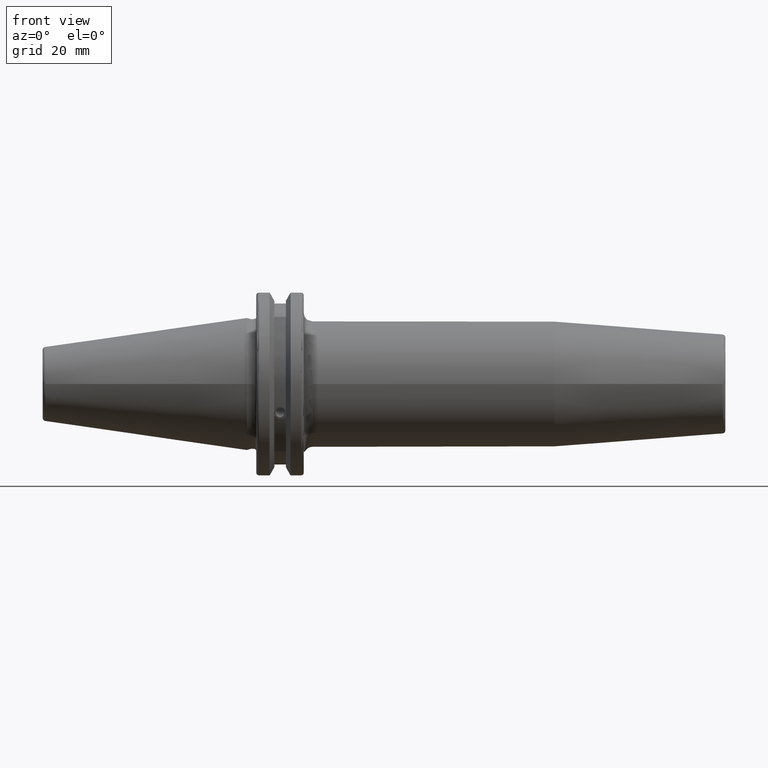
[diagram: clean part render]
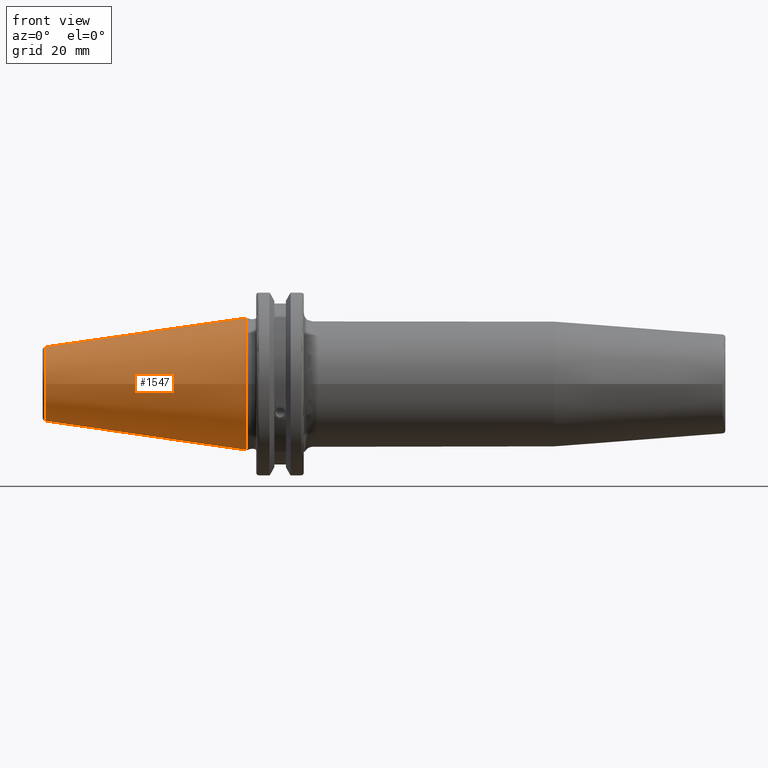
[diagram: same view with one face highlighted and labeled with its STEP entity id]
A machine part, front view. The second image highlights one B-rep face of the part: STEP entity #1547.
In plain terms, the highlighted conical surface has half-angle 8.297 deg.
Its self-contained STEP definition (entity closure, byte-faithful):
#237=LINE('',#2953,#330);
#330=VECTOR('',#2130,17.2484375);
#357=CONICAL_SURFACE('',#1736,17.2484375,0.144812498238939);
#421=FACE_OUTER_BOUND('',#521,.T.);
#521=EDGE_LOOP('',(#1346,#1347,#1348,#1349,#1350));
#608=CIRCLE('',#1730,12.3966635780937);
#609=CIRCLE('',#1731,12.3966635780937);
#613=CIRCLE('',#1737,22.225);
#764=VERTEX_POINT('',#2940);
#765=VERTEX_POINT('',#2941);
#768=VERTEX_POINT('',#2951);
#974=EDGE_CURVE('',#764,#765,#608,.T.);
#975=EDGE_CURVE('',#765,#764,#609,.T.);
#979=EDGE_CURVE('',#768,#768,#613,.T.);
#980=EDGE_CURVE('',#768,#765,#237,.T.);
#1346=ORIENTED_EDGE('',*,*,#979,.F.);
#1347=ORIENTED_EDGE('',*,*,#980,.T.);
#1348=ORIENTED_EDGE('',*,*,#974,.F.);
#1349=ORIENTED_EDGE('',*,*,#975,.F.);
#1350=ORIENTED_EDGE('',*,*,#980,.F.);
#1547=ADVANCED_FACE('',(#421),#357,.T.);
#1730=AXIS2_PLACEMENT_3D('',#2942,#2114,#2115);
#1731=AXIS2_PLACEMENT_3D('',#2943,#2116,#2117);
#1736=AXIS2_PLACEMENT_3D('',#2950,#2126,#2127);
#1737=AXIS2_PLACEMENT_3D('',#2952,#2128,#2129);
#2114=DIRECTION('center_axis',(-1.,0.,0.));
#2115=DIRECTION('ref_axis',(0.,-1.,3.06161699786838E-17));
#2116=DIRECTION('center_axis',(-1.,0.,0.));
#2117=DIRECTION('ref_axis',(0.,-1.,3.06161699786838E-17));
#2126=DIRECTION('center_axis',(1.,0.,0.));
#2127=DIRECTION('ref_axis',(0.,1.,0.));
#2128=DIRECTION('center_axis',(1.,0.,0.));
#2129=DIRECTION('ref_axis',(0.,0.,-1.));
#2130=DIRECTION('',(-0.989532981063282,0.144306893071729,1.76724974695192E-17));
#2940=CARTESIAN_POINT('',(-67.3943068930717,-1.5181534371019E-15,12.3966635780937));
#2941=CARTESIAN_POINT('',(-67.3943068930718,-12.3966635780937,-1.5181534371019E-15));
#2942=CARTESIAN_POINT('Origin',(-67.3943068930717,0.,-1.89769179637738E-15));
#2943=CARTESIAN_POINT('Origin',(-67.3943068930717,0.,-1.89769179637738E-15));
#2950=CARTESIAN_POINT('Origin',(-34.125,0.,0.));
#2951=CARTESIAN_POINT('',(0.,-22.225,-2.72177751110499E-15));
#2952=CARTESIAN_POINT('Origin',(0.,0.,0.));
#2953=CARTESIAN_POINT('',(-34.125,-17.2484375,-2.11232437746682E-15));